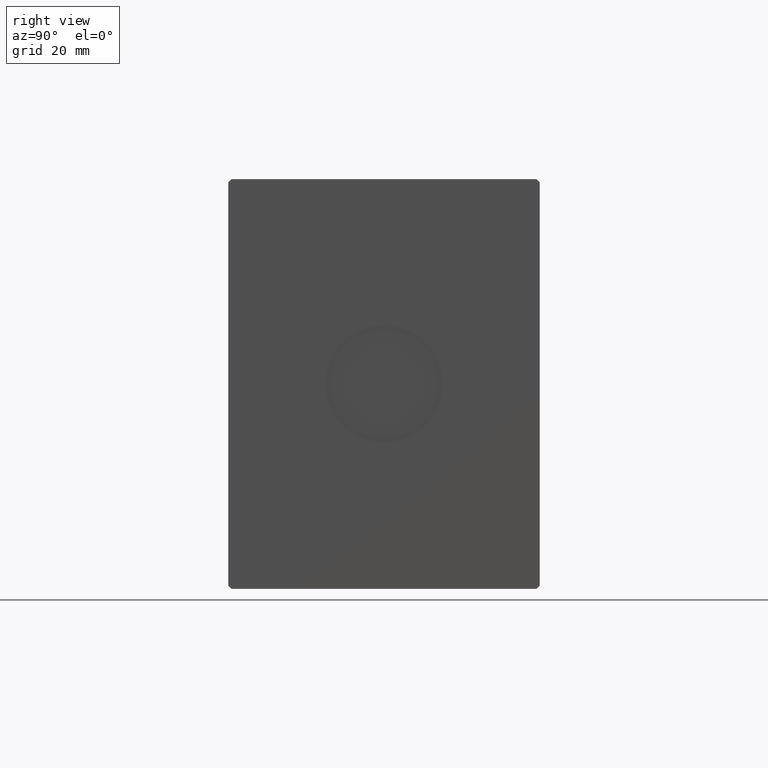
[diagram: clean part render]
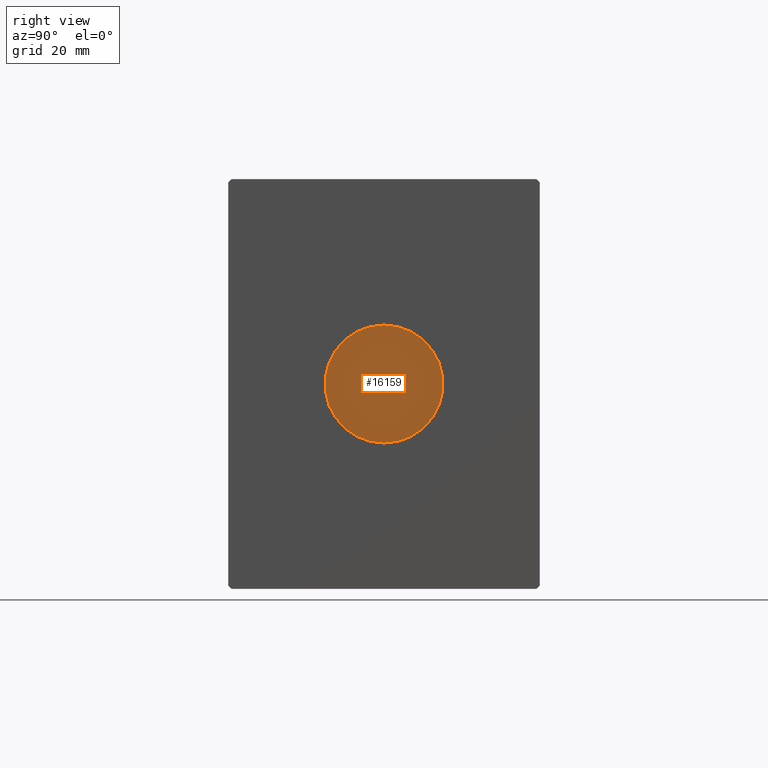
[diagram: same view with one face highlighted and labeled with its STEP entity id]
A machine part, right view. The second image highlights one B-rep face of the part: STEP entity #16159.
In plain terms, the highlighted planar face has unit normal (1, 0, 0).
Its self-contained STEP definition (entity closure, byte-faithful):
#194 = DIRECTION ( 'NONE',  ( 1.000000000000000000, 0.000000000000000000, 0.000000000000000000 ) ) ;
#2720 = ORIENTED_EDGE ( 'NONE', *, *, #16232, .T. ) ;
#2955 = CARTESIAN_POINT ( 'NONE',  ( 120.7999999999999972, 0.000000000000000000, 0.000000000000000000 ) ) ;
#3283 = DIRECTION ( 'NONE',  ( 1.000000000000000000, 0.000000000000000000, 0.000000000000000000 ) ) ;
#5718 = PLANE ( 'NONE',  #16015 ) ;
#6100 = CARTESIAN_POINT ( 'NONE',  ( 120.7999999999999972, 0.000000000000000000, 0.000000000000000000 ) ) ;
#7711 = VERTEX_POINT ( 'NONE', #23299 ) ;
#9575 = CARTESIAN_POINT ( 'NONE',  ( 120.7999999999999972, 0.000000000000000000, 0.000000000000000000 ) ) ;
#15292 = EDGE_CURVE ( 'NONE', #29202, #7711, #24782, .T. ) ;
#16015 = AXIS2_PLACEMENT_3D ( 'NONE', #6100, #24399, #21259 ) ;
#16159 = ADVANCED_FACE ( 'NONE', ( #36585 ), #5718, .T. ) ;
#16232 = EDGE_CURVE ( 'NONE', #7711, #29202, #21682, .T. ) ;
#19031 = DIRECTION ( 'NONE',  ( 0.000000000000000000, 0.000000000000000000, -1.000000000000000000 ) ) ;
#19153 = AXIS2_PLACEMENT_3D ( 'NONE', #2955, #194, #26960 ) ;
#21259 = DIRECTION ( 'NONE',  ( 0.000000000000000000, 0.000000000000000000, -1.000000000000000000 ) ) ;
#21682 = CIRCLE ( 'NONE', #19153, 18.00000000000000000 ) ;
#23299 = CARTESIAN_POINT ( 'NONE',  ( 120.7999999999999972, 2.204364238465235428E-15, 18.00000000000000000 ) ) ;
#23527 = AXIS2_PLACEMENT_3D ( 'NONE', #9575, #3283, #19031 ) ;
#24399 = DIRECTION ( 'NONE',  ( 1.000000000000000000, 0.000000000000000000, 0.000000000000000000 ) ) ;
#24782 = CIRCLE ( 'NONE', #23527, 18.00000000000000000 ) ;
#26960 = DIRECTION ( 'NONE',  ( 0.000000000000000000, 0.000000000000000000, -1.000000000000000000 ) ) ;
#28727 = ORIENTED_EDGE ( 'NONE', *, *, #15292, .T. ) ;
#29202 = VERTEX_POINT ( 'NONE', #34091 ) ;
#33448 = EDGE_LOOP ( 'NONE', ( #28727, #2720 ) ) ;
#34091 = CARTESIAN_POINT ( 'NONE',  ( 120.7999999999999972, 0.000000000000000000, -18.00000000000000000 ) ) ;
#36585 = FACE_OUTER_BOUND ( 'NONE', #33448, .T. ) ;